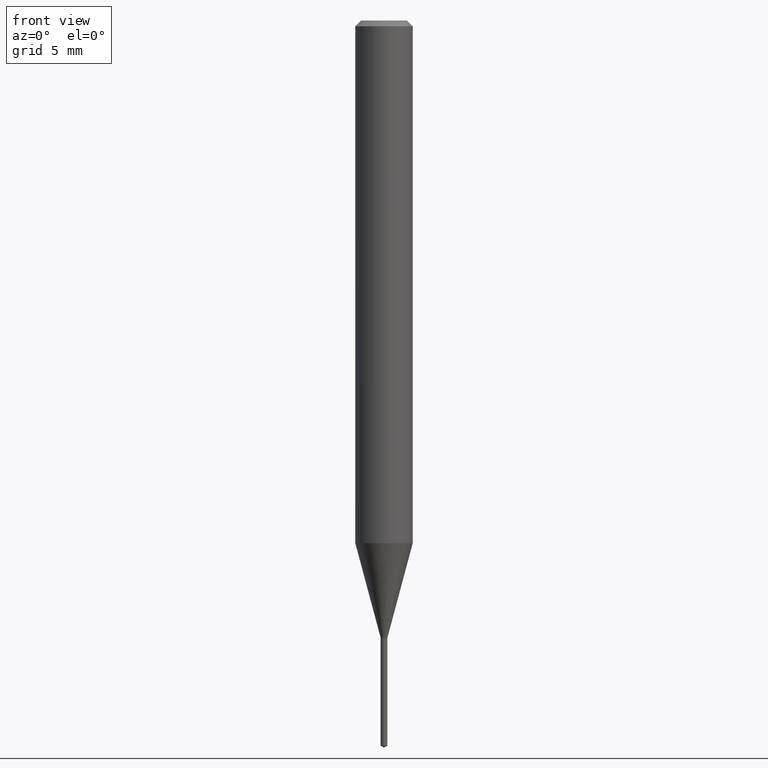
[diagram: clean part render]
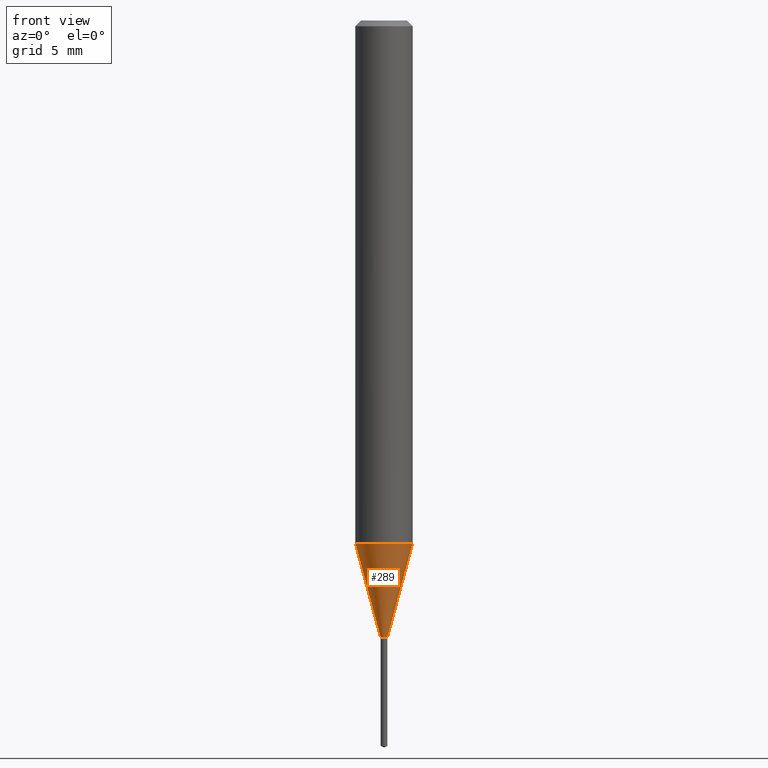
[diagram: same view with one face highlighted and labeled with its STEP entity id]
A machine part, front view. The second image highlights one B-rep face of the part: STEP entity #289.
In plain terms, the highlighted conical surface has half-angle 15 deg.
Its self-contained STEP definition (entity closure, byte-faithful):
#3 = CIRCLE ( 'NONE', #214, 0.007100000000000000408 ) ;
#17 = ORIENTED_EDGE ( 'NONE', *, *, #56, .T. ) ;
#19 = CARTESIAN_POINT ( 'NONE',  ( -0.05905000000000013710, -3.336280682603885216E-15, -1.075719960546796861 ) ) ;
#27 = CARTESIAN_POINT ( 'NONE',  ( 0.007100000000000000408, -4.482363742806830057E-15, -1.269600000000000062 ) ) ;
#33 = VERTEX_POINT ( 'NONE', #301 ) ;
#38 = CARTESIAN_POINT ( 'NONE',  ( -0.007100000000000000408, -4.385129358627364316E-15, -1.269600000000000062 ) ) ;
#56 = EDGE_CURVE ( 'NONE', #33, #459, #101, .T. ) ;
#60 = LINE ( 'NONE', #269, #114 ) ;
#69 = DIRECTION ( 'NONE',  ( 1.000000000000000000, -6.982962677686291954E-15, 0.000000000000000000 ) ) ;
#90 = ORIENTED_EDGE ( 'NONE', *, *, #322, .F. ) ;
#101 = LINE ( 'NONE', #27, #358 ) ;
#107 = CARTESIAN_POINT ( 'NONE',  ( 3.104767196332649259E-29, -4.432784707795257778E-15, -1.269600000000000062 ) ) ;
#114 = VECTOR ( 'NONE', #372, 39.37007874015747433 ) ;
#117 = CARTESIAN_POINT ( 'NONE',  ( 0.05905000000000013710, -4.168200114187600418E-15, -1.075719960546796861 ) ) ;
#146 = VERTEX_POINT ( 'NONE', #19 ) ;
#162 = EDGE_CURVE ( 'NONE', #146, #459, #444, .T. ) ;
#163 = AXIS2_PLACEMENT_3D ( 'NONE', #172, #392, #424 ) ;
#172 = CARTESIAN_POINT ( 'NONE',  ( 2.630639607707897401E-29, -3.755856168070225498E-15, -1.075719960546796861 ) ) ;
#187 = ORIENTED_EDGE ( 'NONE', *, *, #162, .F. ) ;
#210 = DIRECTION ( 'NONE',  ( -2.445468806185136597E-29, 3.491481338843145583E-15, 1.000000000000000000 ) ) ;
#214 = AXIS2_PLACEMENT_3D ( 'NONE', #237, #408, #69 ) ;
#234 = EDGE_CURVE ( 'NONE', #380, #33, #3, .T. ) ;
#237 = CARTESIAN_POINT ( 'NONE',  ( 3.104767196332649259E-29, -4.432784707795257778E-15, -1.269600000000000062 ) ) ;
#269 = CARTESIAN_POINT ( 'NONE',  ( -0.007100000000000000408, -4.382336173556289910E-15, -1.269600000000000062 ) ) ;
#275 = AXIS2_PLACEMENT_3D ( 'NONE', #107, #210, #391 ) ;
#289 = ADVANCED_FACE ( 'NONE', ( #449 ), #342, .T. ) ;
#301 = CARTESIAN_POINT ( 'NONE',  ( 0.007100000000000000408, -4.482363742806830057E-15, -1.269600000000000062 ) ) ;
#315 = EDGE_LOOP ( 'NONE', ( #90, #458, #17, #187 ) ) ;
#322 = EDGE_CURVE ( 'NONE', #380, #146, #60, .T. ) ;
#342 = CONICAL_SURFACE ( 'NONE', #275, 0.007100000000000000408, 0.2617993877991500740 ) ;
#358 = VECTOR ( 'NONE', #432, 39.37007874015747433 ) ;
#372 = DIRECTION ( 'NONE',  ( -0.2588190451025213501, 5.211531920934551042E-15, 0.9659258262890682012 ) ) ;
#380 = VERTEX_POINT ( 'NONE', #38 ) ;
#391 = DIRECTION ( 'NONE',  ( 1.000000000000000000, -6.982962677686291954E-15, 0.000000000000000000 ) ) ;
#392 = DIRECTION ( 'NONE',  ( -2.445468806185136597E-29, 3.491481338843145583E-15, 1.000000000000000000 ) ) ;
#408 = DIRECTION ( 'NONE',  ( -2.445468806185136597E-29, 3.491481338843145583E-15, 1.000000000000000000 ) ) ;
#424 = DIRECTION ( 'NONE',  ( 1.000000000000000000, -6.982962677686265133E-15, 0.000000000000000000 ) ) ;
#432 = DIRECTION ( 'NONE',  ( 0.2588190451025213501, 1.565188264969621968E-15, 0.9659258262890682012 ) ) ;
#444 = CIRCLE ( 'NONE', #163, 0.05905000000000013016 ) ;
#449 = FACE_OUTER_BOUND ( 'NONE', #315, .T. ) ;
#458 = ORIENTED_EDGE ( 'NONE', *, *, #234, .T. ) ;
#459 = VERTEX_POINT ( 'NONE', #117 ) ;